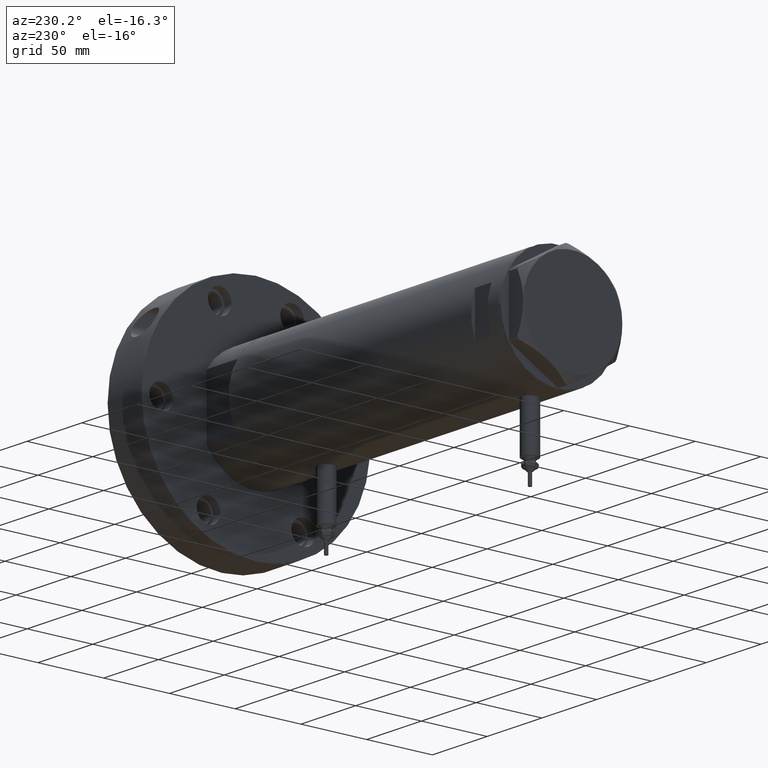
[diagram: clean part render]
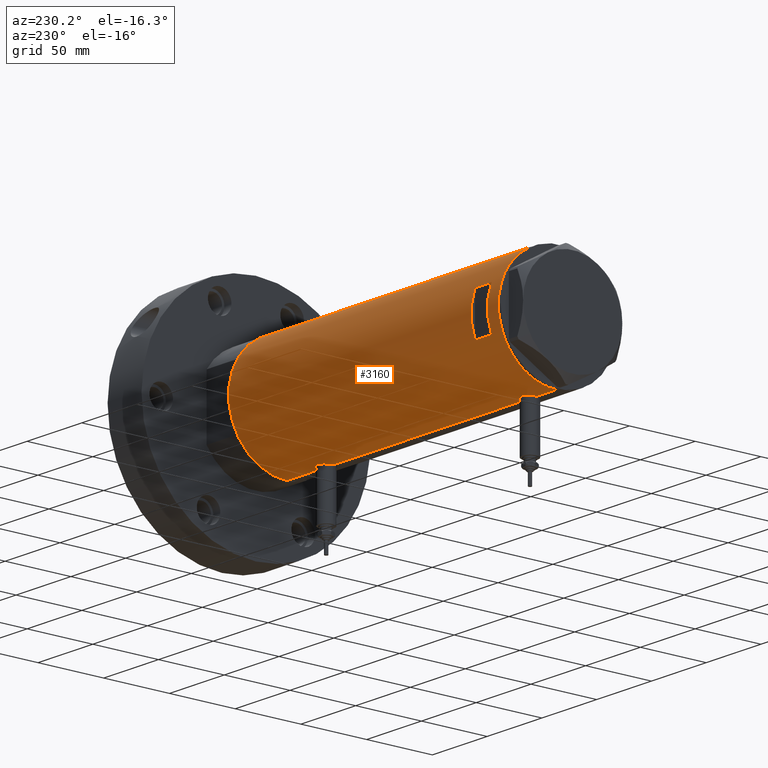
[diagram: same view with one face highlighted and labeled with its STEP entity id]
A machine part, auxiliary view. The second image highlights one B-rep face of the part: STEP entity #3160.
In plain terms, the highlighted cylindrical surface (partial cylindrical patch) has radius 44 mm, axis along (-1, -0, 0).
Its self-contained STEP definition (entity closure, byte-faithful):
#37 = CARTESIAN_POINT ( 'NONE',  ( 42.99303682946561622, 9.360292926890508625, 97.36575779792795515 ) ) ;
#45 = LINE ( 'NONE', #75, #5364 ) ;
#75 = CARTESIAN_POINT ( 'NONE',  ( -15.96871942267131672, 40.99999999999999289, -123.2000000000000028 ) ) ;
#97 = ORIENTED_EDGE ( 'NONE', *, *, #3773, .T. ) ;
#122 = CARTESIAN_POINT ( 'NONE',  ( 43.13897484505559277, 8.663345277311661263, -66.10529600060513644 ) ) ;
#161 = CARTESIAN_POINT ( 'NONE',  ( 43.92756755766649235, 2.604528169608125499, -51.42286588097656619 ) ) ;
#186 = CARTESIAN_POINT ( 'NONE',  ( -43.88968326835893663, 3.132363423941621150, 104.6237923235648140 ) ) ;
#214 = CARTESIAN_POINT ( 'NONE',  ( 43.35257020184193522, 7.523219862841655114, 107.4960255408414014 ) ) ;
#236 = CARTESIAN_POINT ( 'NONE',  ( 43.35294442506074830, 7.532526048221051873, -67.70935414491114557 ) ) ;
#298 = CARTESIAN_POINT ( 'NONE',  ( 43.27871541412904577, 7.937063204555986573, 106.9917499724603118 ) ) ;
#302 = CARTESIAN_POINT ( 'NONE',  ( -43.97754480947185129, 1.419697478855583617, 105.2900327605207167 ) ) ;
#344 = CARTESIAN_POINT ( 'NONE',  ( -43.99417607942193342, 0.8200150578638748522, -80.69063327483259229 ) ) ;
#380 = CARTESIAN_POINT ( 'NONE',  ( -43.83576802966640429, 3.813209221108459168, 94.23134509645292667 ) ) ;
#392 = CARTESIAN_POINT ( 'NONE',  ( -43.64122538274736485, 5.608286354294323317, -84.13388613036659081 ) ) ;
#433 = CARTESIAN_POINT ( 'NONE',  ( -43.88883895882798925, 3.130924084324101742, -92.31312455748147272 ) ) ;
#455 = CARTESIAN_POINT ( 'NONE',  ( -43.95549163632549750, 2.014511215452028381, 93.26941044295023175 ) ) ;
#539 = CARTESIAN_POINT ( 'NONE',  ( -43.55382423478827292, 6.250151562062086441, 98.79410470512661391 ) ) ;
#574 = CARTESIAN_POINT ( 'NONE',  ( 43.07598348983508885, 8.971306953823008357, 96.47030576812815639 ) ) ;
#588 = EDGE_CURVE ( 'NONE', #5628, #2225, #1840, .T. ) ;
#602 = B_SPLINE_CURVE_WITH_KNOTS ( 'NONE', 3,
 ( #3564, #5322, #3096, #2532, #3131, #5467, #5973, #1917, #1884, #1311, #1846, #668, #2988, #236, #6014, #4744, #122, #1351, #780, #4855, #3632, #2416, #3600, #4901, #5936, #5902, #740, #7229, #6616, #2458, #5395, #4241, #7071, #1960, #6504, #6536, #5356, #5430, #7111, #1394, #4786, #2577, #4210, #3060, #161, #4284, #2496, #4819, #2000, #4323 ),
 .UNSPECIFIED., .F., .F.,
 ( 4, 2, 2, 2, 2, 2, 2, 2, 2, 2, 2, 2, 2, 2, 2, 2, 2, 2, 2, 2, 2, 2, 2, 2, 4 ),
 ( 1.692956015708611541E-18, 0.001960456513248875435, 0.002940684769873316406, 0.003920913026497757810, 0.005881369539746623271, 0.006861597796371055567, 0.007841826052995486129, 0.009802282566244380213, 0.01078251082286882552, 0.01176273907949326736, 0.01274296733611771093, 0.01372319559274215450, 0.01568365210599102083, 0.01764410861923988716, 0.01960456513248875349, 0.02058479338911319706, 0.02156502164573764410, 0.02254524990236208420, 0.02352547815898652778, 0.02548593467223542880, 0.02646616292885988278, 0.02744639118548432982, 0.02940684769873323431, 0.03038707595535768483, 0.03136730421198213187 ),
 .UNSPECIFIED. ) ;
#643 = EDGE_CURVE ( 'NONE', #5549, #1291, #1861, .T. ) ;
#651 = CYLINDRICAL_SURFACE ( 'NONE', #2320, 44.00000000000000000 ) ;
#652 = CARTESIAN_POINT ( 'NONE',  ( 42.92624534982632412, 9.661626915142806027, 98.29991995855294817 ) ) ;
#668 = CARTESIAN_POINT ( 'NONE',  ( 43.50265731352002518, 6.601850423195598339, -68.61819167298953914 ) ) ;
#675 = VERTEX_POINT ( 'NONE', #1414 ) ;
#720 = CARTESIAN_POINT ( 'NONE',  ( 42.86396777580257833, 9.934664719553396139, 102.2157619902652073 ) ) ;
#740 = CARTESIAN_POINT ( 'NONE',  ( 42.86396777580258544, 9.934664719553399692, -59.78423800973479985 ) ) ;
#746 = EDGE_CURVE ( 'NONE', #3837, #675, #2742, .T. ) ;
#780 = CARTESIAN_POINT ( 'NONE',  ( 43.04663170950395568, 9.110642017076084898, -65.23547502190393743 ) ) ;
#840 = CARTESIAN_POINT ( 'NONE',  ( 42.92259096922160921, 9.678247830257125983, 103.5000599302879607 ) ) ;
#858 = CARTESIAN_POINT ( 'NONE',  ( -43.58221825186232223, 6.049526113783018744, -88.52262970817959342 ) ) ;
#882 = CARTESIAN_POINT ( 'NONE',  ( 43.99635668041006653, 0.6544833911834598839, 110.8840070847753481 ) ) ;
#891 = CARTESIAN_POINT ( 'NONE',  ( -43.80646232387288563, 4.132500855894024383, 103.9064558540335668 ) ) ;
#903 = CARTESIAN_POINT ( 'NONE',  ( -43.62981559643959883, 5.696090409300652802, -89.48051365414525549 ) ) ;
#923 = CARTESIAN_POINT ( 'NONE',  ( -43.61859254253774054, 5.782454868881351295, 101.5978640089446827 ) ) ;
#936 = CARTESIAN_POINT ( 'NONE',  ( -43.71938389712227035, 4.966728892888061075, -83.08385547659129600 ) ) ;
#956 = CARTESIAN_POINT ( 'NONE',  ( -43.67867890111967455, 5.309046579850785541, 95.89577220923976597 ) ) ;
#968 = CARTESIAN_POINT ( 'NONE',  ( -43.80646232387288563, 4.132500855894024383, -82.19354414596645597 ) ) ;
#994 = LINE ( 'NONE', #5039, #4277 ) ;
#1010 = CARTESIAN_POINT ( 'NONE',  ( -43.97754480947187261, 1.419697478855584283, -80.80996723947926341 ) ) ;
#1028 = DIRECTION ( 'NONE',  ( 0.000000000000000000, 0.000000000000000000, 1.000000000000000000 ) ) ;
#1036 = CARTESIAN_POINT ( 'NONE',  ( -43.59867737633045692, 5.931302618788633296, 97.18750504970115855 ) ) ;
#1070 = CARTESIAN_POINT ( 'NONE',  ( -43.71901936021023971, 4.969830049220626655, 95.38832362301124590 ) ) ;
#1112 = CARTESIAN_POINT ( 'NONE',  ( -43.58221825186232223, 6.049526113783018744, 97.57737029182041510 ) ) ;
#1118 = VECTOR ( 'NONE', #2748, 1000.000000000000000 ) ;
#1163 = CARTESIAN_POINT ( 'NONE',  ( -15.96871942267132027, 40.99999999999999289, 113.1999999999999886 ) ) ;
#1186 = CARTESIAN_POINT ( 'NONE',  ( -44.00000000000000000, 5.388445916248352830E-15, 123.2000000000000028 ) ) ;
#1265 = CARTESIAN_POINT ( 'NONE',  ( 0.000000000000000000, 0.000000000000000000, -123.2000000000000028 ) ) ;
#1291 = VERTEX_POINT ( 'NONE', #3415 ) ;
#1296 = CARTESIAN_POINT ( 'NONE',  ( 43.71454618729809027, 5.012329428678966359, 109.5593697405831080 ) ) ;
#1304 = DIRECTION ( 'NONE',  ( 0.000000000000000000, 0.000000000000000000, 1.000000000000000000 ) ) ;
#1311 = CARTESIAN_POINT ( 'NONE',  ( 43.61291203895920887, 5.829986172017924240, -69.23128710786831164 ) ) ;
#1351 = CARTESIAN_POINT ( 'NONE',  ( 43.07598348983507464, 8.971306953823004804, -65.52969423187188625 ) ) ;
#1394 = CARTESIAN_POINT ( 'NONE',  ( 43.68141895191830315, 5.292250119194744862, -52.60895047714806338 ) ) ;
#1414 = CARTESIAN_POINT ( 'NONE',  ( 44.00000000000000000, -1.742910476879209922E-15, -71.10000000000000853 ) ) ;
#1427 = CARTESIAN_POINT ( 'NONE',  ( -43.55386785759471735, 6.249847571481741859, -86.48945052382046583 ) ) ;
#1447 = CARTESIAN_POINT ( 'NONE',  ( 43.13962074468734897, 8.660138848900674091, 105.9108974116393398 ) ) ;
#1451 = EDGE_CURVE ( 'NONE', #675, #7063, #602, .T. ) ;
#1466 = CARTESIAN_POINT ( 'NONE',  ( -43.58362292239462477, 6.039157555656596621, -85.27736421551961143 ) ) ;
#1473 = CARTESIAN_POINT ( 'NONE',  ( 0.000000000000000000, 0.000000000000000000, -123.2000000000000028 ) ) ;
#1493 = EDGE_CURVE ( 'NONE', #7128, #2712, #5070, .T. ) ;
#1496 = CARTESIAN_POINT ( 'NONE',  ( -43.67863969133946966, 5.309394106110037370, 102.5037929650255251 ) ) ;
#1508 = CARTESIAN_POINT ( 'NONE',  ( -43.87596296923810968, 3.305851531861729420, -92.20803585876264208 ) ) ;
#1531 = CARTESIAN_POINT ( 'NONE',  ( -43.99999999999997158, 0.4081702738789199092, 92.94999999999997442 ) ) ;
#1542 = CARTESIAN_POINT ( 'NONE',  ( -43.59867737633045692, 5.931302618788633296, -88.91249495029892103 ) ) ;
#1577 = CARTESIAN_POINT ( 'NONE',  ( -43.88968326835894374, 3.132363423941621594, -81.47620767643522299 ) ) ;
#1602 = AXIS2_PLACEMENT_3D ( 'NONE', #4117, #2971, #4763 ) ;
#1668 = CARTESIAN_POINT ( 'NONE',  ( -15.96871942267131672, 40.99999999999999289, 98.19999999999998863 ) ) ;
#1726 = CARTESIAN_POINT ( 'NONE',  ( 43.27822890220284080, 7.945655169171510934, 94.79274616710708301 ) ) ;
#1760 = CARTESIAN_POINT ( 'NONE',  ( 43.77939001959704513, 4.442287752090380515, 91.91693822440836925 ) ) ;
#1840 = CIRCLE ( 'NONE', #3909, 44.00000000000000000 ) ;
#1846 = CARTESIAN_POINT ( 'NONE',  ( 43.57657781376908446, 6.094873943596686772, -69.03474301119597101 ) ) ;
#1861 = B_SPLINE_CURVE_WITH_KNOTS ( 'NONE', 3,
 ( #4729, #2437, #3546, #5338, #5774, #2870, #5199, #1760, #2940, #2975, #4700, #4121, #7521, #2293, #1726, #4052, #6385, #574, #5278, #37, #2370, #652, #5309, #5528, #7279, #4877, #720, #840, #6596, #6521, #1935, #1447, #3697, #6035, #298, #214, #4343, #2479, #7208, #6552, #1296, #5416, #4306, #4261, #3768, #6672, #4955, #882, #2552, #3116 ),
 .UNSPECIFIED., .F., .F.,
 ( 4, 2, 2, 2, 2, 2, 2, 2, 2, 2, 2, 2, 2, 2, 2, 2, 2, 2, 2, 2, 2, 2, 2, 2, 4 ),
 ( 2.058272752699468799E-18, 0.001960456513248896686, 0.002940684769873340258, 0.003920913026497782963, 0.005881369539746685721, 0.006861597796371134497, 0.007841826052995583274, 0.009802282566244484296, 0.01078251082286893481, 0.01176273907949338358, 0.01274296733611783236, 0.01372319559274228114, 0.01568365210599118043, 0.01764410861924008145, 0.01960456513248897553, 0.02058479338911340870, 0.02156502164573783492, 0.02254524990236226462, 0.02352547815898669778, 0.02548593467223555370, 0.02646616292885998686, 0.02744639118548441656, 0.02940684769873326901, 0.03038707595535769523, 0.03136730421198211799 ),
 .UNSPECIFIED. ) ;
#1868 = DIRECTION ( 'NONE',  ( 1.000000000000000000, 0.000000000000000000, 0.000000000000000000 ) ) ;
#1884 = CARTESIAN_POINT ( 'NONE',  ( 43.71659050864932539, 5.015880325000606987, -69.77566825963825181 ) ) ;
#1917 = CARTESIAN_POINT ( 'NONE',  ( 43.77939001959706644, 4.442287752090380515, -70.08306177559164496 ) ) ;
#1935 = CARTESIAN_POINT ( 'NONE',  ( 43.07641822757289418, 8.969229373860574839, 105.3339623579017257 ) ) ;
#1955 = ORIENTED_EDGE ( 'NONE', *, *, #5397, .F. ) ;
#1960 = CARTESIAN_POINT ( 'NONE',  ( 43.24261242176996234, 8.130827601038836505, -55.26944813145832569 ) ) ;
#1986 = CARTESIAN_POINT ( 'NONE',  ( -44.00000000000000711, 0.4135148353567996149, 105.4500000000000028 ) ) ;
#2000 = CARTESIAN_POINT ( 'NONE',  ( 44.00000000000002132, 0.3269372501759426064, -51.10000000000002274 ) ) ;
#2023 = CARTESIAN_POINT ( 'NONE',  ( -43.99417607942194763, 0.8200150578638748522, 105.4093667251674162 ) ) ;
#2032 = CARTESIAN_POINT ( 'NONE',  ( -43.80687348212602217, 4.128385987736835183, -91.61048743310965392 ) ) ;
#2067 = ORIENTED_EDGE ( 'NONE', *, *, #1451, .F. ) ;
#2069 = CARTESIAN_POINT ( 'NONE',  ( -43.97181775256598257, 1.624866278047412571, -92.94892918385093594 ) ) ;
#2112 = CARTESIAN_POINT ( 'NONE',  ( -43.94507179847653333, 2.206027755801677870, -81.04868477718204645 ) ) ;
#2118 = DIRECTION ( 'NONE',  ( 1.000000000000000000, 0.000000000000000000, 0.000000000000000000 ) ) ;
#2200 = ORIENTED_EDGE ( 'NONE', *, *, #7262, .T. ) ;
#2209 = VECTOR ( 'NONE', #6879, 1000.000000000000000 ) ;
#2225 = VERTEX_POINT ( 'NONE', #1668 ) ;
#2282 = ORIENTED_EDGE ( 'NONE', *, *, #588, .F. ) ;
#2293 = CARTESIAN_POINT ( 'NONE',  ( 43.35294442506074830, 7.532526048221051873, 94.29064585508892549 ) ) ;
#2320 = AXIS2_PLACEMENT_3D ( 'NONE', #1265, #4836, #1868 ) ;
#2329 = DIRECTION ( 'NONE',  ( 1.000000000000000000, 0.000000000000000000, 0.000000000000000000 ) ) ;
#2370 = CARTESIAN_POINT ( 'NONE',  ( 42.96879251999279603, 9.470609476412111150, 97.67277100058943518 ) ) ;
#2416 = CARTESIAN_POINT ( 'NONE',  ( 42.92624534982631701, 9.661626915142809580, -63.70008004144708735 ) ) ;
#2437 = CARTESIAN_POINT ( 'NONE',  ( 44.00000000000000711, 0.6630566900259819985, 90.90000000000001990 ) ) ;
#2458 = CARTESIAN_POINT ( 'NONE',  ( 43.04652664061919154, 9.111152824375430725, -56.96541990785409837 ) ) ;
#2479 = CARTESIAN_POINT ( 'NONE',  ( 43.50382207688845426, 6.605942769308304818, 108.4360468883821937 ) ) ;
#2496 = CARTESIAN_POINT ( 'NONE',  ( 43.98169492814103876, 1.310824514239773642, -51.18080219619317006 ) ) ;
#2520 = VERTEX_POINT ( 'NONE', #1163 ) ;
#2532 = CARTESIAN_POINT ( 'NONE',  ( 43.94229162222108442, 2.275476993733909659, -70.84314464222306640 ) ) ;
#2552 = CARTESIAN_POINT ( 'NONE',  ( 44.00000000000000000, 0.3269372501759406080, 110.8999999999999773 ) ) ;
#2562 = CARTESIAN_POINT ( 'NONE',  ( 44.00000000000000000, -3.917167710965456221E-21, -51.10000000000000853 ) ) ;
#2577 = CARTESIAN_POINT ( 'NONE',  ( 43.77712723341632994, 4.432620652875510991, -52.13004990240029457 ) ) ;
#2616 = CARTESIAN_POINT ( 'NONE',  ( -43.55973179376100290, 6.209370339246232717, -87.72061767059871329 ) ) ;
#2671 = CARTESIAN_POINT ( 'NONE',  ( -43.97068415157983878, 1.617901284326946909, 105.2404512830004535 ) ) ;
#2683 = CARTESIAN_POINT ( 'NONE',  ( -44.00000000000000711, 0.4081702738789186879, -93.15000000000003411 ) ) ;
#2712 = VERTEX_POINT ( 'NONE', #7060 ) ;
#2714 = CARTESIAN_POINT ( 'NONE',  ( -43.99413512814552263, 0.8228129877960650429, 92.99091685674176233 ) ) ;
#2721 = CARTESIAN_POINT ( 'NONE',  ( 15.96871942267132027, 40.99999999999999289, 113.1999999999999886 ) ) ;
#2742 = LINE ( 'NONE', #2776, #5750 ) ;
#2748 = DIRECTION ( 'NONE',  ( 0.000000000000000000, 0.000000000000000000, 1.000000000000000000 ) ) ;
#2762 = CARTESIAN_POINT ( 'NONE',  ( -43.97068415157985299, 1.617901284326947575, -80.85954871699956925 ) ) ;
#2776 = CARTESIAN_POINT ( 'NONE',  ( 44.00000000000000000, 0.000000000000000000, -123.2000000000000028 ) ) ;
#2868 = CARTESIAN_POINT ( 'NONE',  ( -43.92459115390705193, 2.581892149020998950, 93.50454172926654905 ) ) ;
#2870 = CARTESIAN_POINT ( 'NONE',  ( 43.88297407487991109, 3.222431612395377343, 91.42771797970658554 ) ) ;
#2899 = CARTESIAN_POINT ( 'NONE',  ( 0.000000000000000000, 0.000000000000000000, 123.2000000000000028 ) ) ;
#2940 = CARTESIAN_POINT ( 'NONE',  ( 43.71659050864931828, 5.015880325000606099, 92.22433174036179082 ) ) ;
#2962 = CARTESIAN_POINT ( 'NONE',  ( 44.00000000000000000, 0.000000000000000000, 123.2000000000000028 ) ) ;
#2971 = DIRECTION ( 'NONE',  ( -0.000000000000000000, -0.000000000000000000, -1.000000000000000000 ) ) ;
#2975 = CARTESIAN_POINT ( 'NONE',  ( 43.61291203895920887, 5.829986172017921575, 92.76871289213168836 ) ) ;
#2988 = CARTESIAN_POINT ( 'NONE',  ( 43.46520118248734121, 6.843279251446917399, -68.39898327212166862 ) ) ;
#2999 = CARTESIAN_POINT ( 'NONE',  ( -44.00000000000000000, 5.388445916248352830E-15, -123.2000000000000028 ) ) ;
#3010 = LINE ( 'NONE', #7103, #4389 ) ;
#3034 = FACE_BOUND ( 'NONE', #3304, .T. ) ;
#3060 = CARTESIAN_POINT ( 'NONE',  ( 43.88561577393361546, 3.228056721358716796, -51.61278334272175528 ) ) ;
#3081 = CARTESIAN_POINT ( 'NONE',  ( 44.00000000000000000, -2.119006702872526837E-15, 90.90000000000000568 ) ) ;
#3092 = VERTEX_POINT ( 'NONE', #6418 ) ;
#3096 = CARTESIAN_POINT ( 'NONE',  ( 43.98503110884232825, 1.314607393679875447, -71.03470984345554484 ) ) ;
#3116 = CARTESIAN_POINT ( 'NONE',  ( 44.00000000000000000, -3.917104602093038540E-21, 110.9000000000000057 ) ) ;
#3131 = CARTESIAN_POINT ( 'NONE',  ( 43.92466059386729427, 2.593004216484781743, -70.76356669671353927 ) ) ;
#3160 = ADVANCED_FACE ( 'NONE', ( #3034, #3545 ), #651, .T. ) ;
#3202 = CARTESIAN_POINT ( 'NONE',  ( -43.74833112883977293, 4.708208586952001617, 103.3305038350888339 ) ) ;
#3214 = CARTESIAN_POINT ( 'NONE',  ( -43.95446647384542871, 2.010857111636599637, -80.97875773636062036 ) ) ;
#3246 = CARTESIAN_POINT ( 'NONE',  ( -43.99413512814553684, 0.8228129877960669303, -93.10908314325824620 ) ) ;
#3272 = CARTESIAN_POINT ( 'NONE',  ( -44.00000000000000000, 5.388445781982983516E-15, 92.95000000000000284 ) ) ;
#3304 = EDGE_LOOP ( 'NONE', ( #4338, #2282, #1955, #4526 ) ) ;
#3315 = CARTESIAN_POINT ( 'NONE',  ( -43.88883895882799635, 3.130924084324101297, 93.78687544251855002 ) ) ;
#3329 = CARTESIAN_POINT ( 'NONE',  ( -43.55963022497232373, 6.210088036293395675, -86.08353836982578855 ) ) ;
#3355 = CARTESIAN_POINT ( 'NONE',  ( -43.91315028150560096, 2.769134003554746482, 93.59317380624592886 ) ) ;
#3392 = CARTESIAN_POINT ( 'NONE',  ( -43.87596296923810968, 3.305851531861728976, 93.89196414123738066 ) ) ;
#3415 = CARTESIAN_POINT ( 'NONE',  ( 44.00000000000000000, -3.917104602093038540E-21, 110.9000000000000057 ) ) ;
#3438 = CARTESIAN_POINT ( 'NONE',  ( -43.55963022497231663, 6.210088036293396563, 100.0164616301742342 ) ) ;
#3440 = CARTESIAN_POINT ( 'NONE',  ( 0.000000000000000000, 0.000000000000000000, 98.20000000000017337 ) ) ;
#3541 = VERTEX_POINT ( 'NONE', #2962 ) ;
#3545 = FACE_OUTER_BOUND ( 'NONE', #6884, .T. ) ;
#3546 = CARTESIAN_POINT ( 'NONE',  ( 43.98503110884232115, 1.314607393679875447, 90.96529015654448358 ) ) ;
#3564 = CARTESIAN_POINT ( 'NONE',  ( 44.00000000000000000, -1.742910476879209922E-15, -71.10000000000000853 ) ) ;
#3587 = DIRECTION ( 'NONE',  ( 0.000000000000000000, 1.000000000000000000, -4.731064025391292434E-15 ) ) ;
#3600 = CARTESIAN_POINT ( 'NONE',  ( 42.90786968859021044, 9.742642423712169375, -63.37802296547128122 ) ) ;
#3632 = CARTESIAN_POINT ( 'NONE',  ( 42.96879251999280314, 9.470609476412112926, -64.32722899941057904 ) ) ;
#3657 = VECTOR ( 'NONE', #6386, 1000.000000000000000 ) ;
#3697 = CARTESIAN_POINT ( 'NONE',  ( 43.17306590853067405, 8.492365194390515626, 106.1901253269346057 ) ) ;
#3745 = CARTESIAN_POINT ( 'NONE',  ( -43.74805001749255950, 4.711035428619389620, -91.02776064125801270 ) ) ;
#3768 = CARTESIAN_POINT ( 'NONE',  ( 43.92756755766649945, 2.604528169608117505, 110.5771341190234693 ) ) ;
#3773 = EDGE_CURVE ( 'NONE', #3837, #7297, #7195, .T. ) ;
#3816 = CARTESIAN_POINT ( 'NONE',  ( -43.66555354895124452, 5.415612800338318600, 102.3265635717755799 ) ) ;
#3830 = CARTESIAN_POINT ( 'NONE',  ( -43.67863969133947677, 5.309394106110037370, -83.59620703497455452 ) ) ;
#3837 = VERTEX_POINT ( 'NONE', #6321 ) ;
#3849 = CARTESIAN_POINT ( 'NONE',  ( -43.58362292239462477, 6.039157555656595733, 100.8226357844804113 ) ) ;
#3863 = CARTESIAN_POINT ( 'NONE',  ( -43.64133398152736021, 5.607447751852152606, -89.66786045012436546 ) ) ;
#3902 = CARTESIAN_POINT ( 'NONE',  ( -44.00000000000000000, 4.742402805755500961E-16, -80.65000000000000568 ) ) ;
#3909 = AXIS2_PLACEMENT_3D ( 'NONE', #3440, #6419, #3587 ) ;
#3918 = EDGE_CURVE ( 'NONE', #7297, #2712, #4586, .T. ) ;
#3934 = CARTESIAN_POINT ( 'NONE',  ( -43.55973179376100290, 6.209370339246232717, 98.37938232940129524 ) ) ;
#3957 = EDGE_CURVE ( 'NONE', #7063, #5549, #5076, .T. ) ;
#3973 = CARTESIAN_POINT ( 'NONE',  ( -44.00000000000000000, 5.388445916248352830E-15, -123.2000000000000028 ) ) ;
#4052 = CARTESIAN_POINT ( 'NONE',  ( 43.17277162440353777, 8.493905080221257009, 95.61212964891504384 ) ) ;
#4086 = CARTESIAN_POINT ( 'NONE',  ( -44.00000000000000000, 5.388445916248352830E-15, -123.2000000000000028 ) ) ;
#4106 = EDGE_CURVE ( 'NONE', #2520, #6728, #5500, .T. ) ;
#4117 = CARTESIAN_POINT ( 'NONE',  ( 0.000000000000000000, 0.000000000000000000, 113.1999999999999886 ) ) ;
#4121 = CARTESIAN_POINT ( 'NONE',  ( 43.50265731352003939, 6.601850423195591233, 93.38180832701050349 ) ) ;
#4157 = ORIENTED_EDGE ( 'NONE', *, *, #4182, .F. ) ;
#4182 = EDGE_CURVE ( 'NONE', #3541, #7181, #6111, .T. ) ;
#4210 = CARTESIAN_POINT ( 'NONE',  ( 43.80640706382534688, 4.134078575915398623, -51.98867178437912884 ) ) ;
#4241 = CARTESIAN_POINT ( 'NONE',  ( 43.13962074468733476, 8.660138848900679420, -56.08910258836065310 ) ) ;
#4261 = CARTESIAN_POINT ( 'NONE',  ( 43.88561577393360125, 3.228056721358715020, 110.3872166572782589 ) ) ;
#4277 = VECTOR ( 'NONE', #5157, 1000.000000000000000 ) ;
#4284 = CARTESIAN_POINT ( 'NONE',  ( 43.97062489912107708, 1.639461988184805596, -51.22985373334016401 ) ) ;
#4306 = CARTESIAN_POINT ( 'NONE',  ( 43.80640706382535399, 4.134078575915391518, 110.0113282156209067 ) ) ;
#4323 = CARTESIAN_POINT ( 'NONE',  ( 44.00000000000000000, -3.917167710965456221E-21, -51.10000000000000853 ) ) ;
#4338 = ORIENTED_EDGE ( 'NONE', *, *, #4971, .F. ) ;
#4343 = CARTESIAN_POINT ( 'NONE',  ( 43.39051256276904667, 7.301963662770313945, 107.7402446821294433 ) ) ;
#4353 = ORIENTED_EDGE ( 'NONE', *, *, #3918, .T. ) ;
#4389 = VECTOR ( 'NONE', #1304, 1000.000000000000000 ) ;
#4398 = CARTESIAN_POINT ( 'NONE',  ( -44.00000000000000000, 0.4135148353567997814, -80.65000000000000568 ) ) ;
#4441 = CARTESIAN_POINT ( 'NONE',  ( -43.83576802966639718, 3.813209221108460945, -91.86865490354712449 ) ) ;
#4526 = ORIENTED_EDGE ( 'NONE', *, *, #4106, .F. ) ;
#4529 = B_SPLINE_CURVE_WITH_KNOTS ( 'NONE', 3,
 ( #7215, #1986, #2023, #302, #2671, #6117, #4960, #6002, #186, #4844, #891, #3202, #5534, #1496, #3816, #7173, #923, #6602, #3849, #6187, #3438, #6268, #539, #3934, #1112, #1036, #5772, #7519, #5113, #956, #1070, #6831, #6880, #380, #3392, #3315, #3355, #2868, #455, #4587, #2714, #1531, #3272 ),
 .UNSPECIFIED., .F., .F.,
 ( 4, 2, 2, 2, 2, 2, 2, 2, 1, 2, 2, 2, 2, 2, 2, 2, 2, 2, 2, 2, 2, 4 ),
 ( 4.805521771237896388E-19, 0.001222818171749670340, 0.001834227257624505619, 0.002445636343499341114, 0.003668454515249027284, 0.004891272686998713454, 0.006114090858748398756, 0.006725499944623259188, 0.007336909030498119620, 0.007948318116372978318, 0.008559727202247837882, 0.009782545373997518848, 0.01100536354574719981, 0.01222818171749687904, 0.01283959080337173861, 0.01345099988924659644, 0.01467381806099631383, 0.01589663623274603296, 0.01650804531862088906, 0.01711945440449574862, 0.01834227257624546428, 0.01956509074799517994 ),
 .UNSPECIFIED. ) ;
#4586 = LINE ( 'NONE', #3973, #1118 ) ;
#4587 = CARTESIAN_POINT ( 'NONE',  ( -43.97181775256600389, 1.624866278047415236, 93.15107081614905837 ) ) ;
#4665 = DIRECTION ( 'NONE',  ( 0.000000000000000000, 0.000000000000000000, 1.000000000000000000 ) ) ;
#4700 = CARTESIAN_POINT ( 'NONE',  ( 43.57657781376908446, 6.094873943596679666, 92.96525698880402899 ) ) ;
#4729 = CARTESIAN_POINT ( 'NONE',  ( 44.00000000000000000, -2.119006702872526837E-15, 90.90000000000000568 ) ) ;
#4736 = DIRECTION ( 'NONE',  ( 0.000000000000000000, 0.000000000000000000, 1.000000000000000000 ) ) ;
#4744 = CARTESIAN_POINT ( 'NONE',  ( 43.17277162440353777, 8.493905080221258785, -66.38787035108495616 ) ) ;
#4763 = DIRECTION ( 'NONE',  ( 1.000000000000000000, -8.881784197001252323E-16, 0.000000000000000000 ) ) ;
#4786 = CARTESIAN_POINT ( 'NONE',  ( 43.71454618729809738, 5.012329428678971688, -52.44063025941691336 ) ) ;
#4819 = CARTESIAN_POINT ( 'NONE',  ( 43.99635668041007364, 0.6544833911834621043, -51.11599291522471589 ) ) ;
#4836 = DIRECTION ( 'NONE',  ( 0.000000000000000000, 0.000000000000000000, 1.000000000000000000 ) ) ;
#4844 = CARTESIAN_POINT ( 'NONE',  ( -43.83593455218809254, 3.811409182021277431, 104.1701492770349944 ) ) ;
#4855 = CARTESIAN_POINT ( 'NONE',  ( 42.99303682946562333, 9.360292926890508625, -64.63424220207204485 ) ) ;
#4877 = CARTESIAN_POINT ( 'NONE',  ( 42.84850876528982155, 10.00026482975807696, 101.5505830547042336 ) ) ;
#4901 = CARTESIAN_POINT ( 'NONE',  ( 42.86370458161098895, 9.935807968041570959, -62.40904550429867470 ) ) ;
#4955 = CARTESIAN_POINT ( 'NONE',  ( 43.98169492814102455, 1.310824514239772753, 110.8191978038068441 ) ) ;
#4960 = CARTESIAN_POINT ( 'NONE',  ( -43.94507179847653333, 2.206027755801677870, 105.0513152228179337 ) ) ;
#4971 = EDGE_CURVE ( 'NONE', #2225, #2520, #45, .T. ) ;
#4981 = EDGE_CURVE ( 'NONE', #1291, #3541, #3010, .T. ) ;
#5016 = CARTESIAN_POINT ( 'NONE',  ( -43.95549163632550460, 2.014511215452025716, -92.83058955704979098 ) ) ;
#5039 = CARTESIAN_POINT ( 'NONE',  ( -44.00000000000000000, 5.388445916248352830E-15, -123.2000000000000028 ) ) ;
#5040 = ORIENTED_EDGE ( 'NONE', *, *, #1493, .F. ) ;
#5055 = CARTESIAN_POINT ( 'NONE',  ( -43.66555354895123742, 5.415612800338316823, -83.77343642822442860 ) ) ;
#5067 = ORIENTED_EDGE ( 'NONE', *, *, #643, .F. ) ;
#5070 = B_SPLINE_CURVE_WITH_KNOTS ( 'NONE', 3,
 ( #3902, #4398, #344, #1010, #2762, #3214, #2112, #6128, #1577, #5580, #968, #5547, #936, #3830, #5055, #392, #6241, #6806, #1466, #7292, #3329, #1427, #7261, #2616, #858, #1542, #903, #3863, #6198, #6735, #7377, #3745, #2032, #4441, #1508, #433, #5092, #6164, #5016, #2069, #3246, #2683, #7339 ),
 .UNSPECIFIED., .F., .F.,
 ( 4, 2, 2, 2, 2, 2, 2, 2, 1, 2, 2, 2, 2, 2, 2, 2, 2, 2, 2, 2, 2, 4 ),
 ( 4.607841239822568942E-19, 0.001222818171749670123, 0.001834227257624505185, 0.002445636343499340247, 0.003668454515249025983, 0.004891272686998712586, 0.006114090858748397889, 0.006725499944623258321, 0.007336909030498117018, 0.007948318116372976583, 0.008559727202247836148, 0.009782545373997515378, 0.01100536354574719808, 0.01222818171749687731, 0.01283959080337173687, 0.01345099988924659470, 0.01467381806099630863, 0.01589663623274602602, 0.01650804531862088559, 0.01711945440449574515, 0.01834227257624546081, 0.01956509074799517994 ),
 .UNSPECIFIED. ) ;
#5076 = LINE ( 'NONE', #7395, #2209 ) ;
#5092 = CARTESIAN_POINT ( 'NONE',  ( -43.91315028150560096, 2.769134003554747814, -92.50682619375403704 ) ) ;
#5113 = CARTESIAN_POINT ( 'NONE',  ( -43.66575107734168171, 5.414026674167576658, 96.07064911962304166 ) ) ;
#5156 = VECTOR ( 'NONE', #4665, 1000.000000000000000 ) ;
#5157 = DIRECTION ( 'NONE',  ( 0.000000000000000000, 0.000000000000000000, 1.000000000000000000 ) ) ;
#5191 = ORIENTED_EDGE ( 'NONE', *, *, #7074, .F. ) ;
#5199 = CARTESIAN_POINT ( 'NONE',  ( 43.85884410404901246, 3.534688330930384037, 91.53980191249665666 ) ) ;
#5202 = CARTESIAN_POINT ( 'NONE',  ( 15.96871942267131672, 40.99999999999999289, -123.2000000000000028 ) ) ;
#5278 = CARTESIAN_POINT ( 'NONE',  ( 43.04663170950397699, 9.110642017076083121, 96.76452497809609099 ) ) ;
#5306 = LINE ( 'NONE', #4086, #5156 ) ;
#5309 = CARTESIAN_POINT ( 'NONE',  ( 42.90786968859020334, 9.742642423712167599, 98.62197703452872588 ) ) ;
#5322 = CARTESIAN_POINT ( 'NONE',  ( 44.00000000000001421, 0.6630566900259821095, -71.10000000000000853 ) ) ;
#5338 = CARTESIAN_POINT ( 'NONE',  ( 43.94229162222109863, 2.275476993733910103, 91.15685535777693360 ) ) ;
#5356 = CARTESIAN_POINT ( 'NONE',  ( 43.39051256276902535, 7.301963662770319274, -54.25975531787057804 ) ) ;
#5364 = VECTOR ( 'NONE', #4736, 1000.000000000000000 ) ;
#5389 = ORIENTED_EDGE ( 'NONE', *, *, #4981, .F. ) ;
#5395 = CARTESIAN_POINT ( 'NONE',  ( 43.07641822757288708, 8.969229373860574839, -56.66603764209828853 ) ) ;
#5397 = EDGE_CURVE ( 'NONE', #6728, #5628, #5953, .T. ) ;
#5416 = CARTESIAN_POINT ( 'NONE',  ( 43.77712723341633705, 4.432620652875505662, 109.8699500975997694 ) ) ;
#5430 = CARTESIAN_POINT ( 'NONE',  ( 43.50382207688845426, 6.605942769308313700, -53.56395311161780626 ) ) ;
#5467 = CARTESIAN_POINT ( 'NONE',  ( 43.88297407487988977, 3.222431612395376899, -70.57228202029341446 ) ) ;
#5500 = CIRCLE ( 'NONE', #1602, 44.00000000000000000 ) ;
#5528 = CARTESIAN_POINT ( 'NONE',  ( 42.86370458161097474, 9.935807968041567406, 99.59095449570135372 ) ) ;
#5534 = CARTESIAN_POINT ( 'NONE',  ( -43.71938389712227746, 4.966728892888062852, 103.0161445234087125 ) ) ;
#5547 = CARTESIAN_POINT ( 'NONE',  ( -43.74833112883975872, 4.708208586951999841, -82.76949616491121731 ) ) ;
#5549 = VERTEX_POINT ( 'NONE', #3081 ) ;
#5580 = CARTESIAN_POINT ( 'NONE',  ( -43.83593455218809964, 3.811409182021277431, -81.92985072296499993 ) ) ;
#5587 = DIRECTION ( 'NONE',  ( 0.000000000000000000, 0.000000000000000000, 1.000000000000000000 ) ) ;
#5628 = VERTEX_POINT ( 'NONE', #6785 ) ;
#5675 = VERTEX_POINT ( 'NONE', #5721 ) ;
#5721 = CARTESIAN_POINT ( 'NONE',  ( -44.00000000000000000, 5.388445781982983516E-15, 92.95000000000000284 ) ) ;
#5749 = AXIS2_PLACEMENT_3D ( 'NONE', #2899, #7551, #2329 ) ;
#5750 = VECTOR ( 'NONE', #1028, 1000.000000000000000 ) ;
#5772 = CARTESIAN_POINT ( 'NONE',  ( -43.62981559643959883, 5.696090409300652802, 96.61948634585476725 ) ) ;
#5774 = CARTESIAN_POINT ( 'NONE',  ( 43.92466059386729427, 2.593004216484782187, 91.23643330328644652 ) ) ;
#5829 = ORIENTED_EDGE ( 'NONE', *, *, #3957, .F. ) ;
#5902 = CARTESIAN_POINT ( 'NONE',  ( 42.84850876528982866, 10.00026482975808406, -60.44941694529579479 ) ) ;
#5927 = EDGE_CURVE ( 'NONE', #7128, #5675, #994, .T. ) ;
#5936 = CARTESIAN_POINT ( 'NONE',  ( 42.84863276153905787, 9.999733523508368194, -61.75869904750779682 ) ) ;
#5953 = LINE ( 'NONE', #5202, #3657 ) ;
#5973 = CARTESIAN_POINT ( 'NONE',  ( 43.85884410404901246, 3.534688330930384037, -70.46019808750338598 ) ) ;
#6002 = CARTESIAN_POINT ( 'NONE',  ( -43.91413175532567692, 2.773555030353453965, 104.8158423836674586 ) ) ;
#6014 = CARTESIAN_POINT ( 'NONE',  ( 43.27822890220282659, 7.945655169171512711, -67.20725383289290278 ) ) ;
#6035 = CARTESIAN_POINT ( 'NONE',  ( 43.24261242176994813, 8.130827601038829400, 106.7305518685417383 ) ) ;
#6098 = AXIS2_PLACEMENT_3D ( 'NONE', #1473, #5587, #2118 ) ;
#6111 = CIRCLE ( 'NONE', #5749, 44.00000000000000000 ) ;
#6117 = CARTESIAN_POINT ( 'NONE',  ( -43.95446647384543581, 2.010857111636599637, 105.1212422636393882 ) ) ;
#6128 = CARTESIAN_POINT ( 'NONE',  ( -43.91413175532568403, 2.773555030353453521, -81.28415761633259251 ) ) ;
#6164 = CARTESIAN_POINT ( 'NONE',  ( -43.92459115390706614, 2.581892149020998950, -92.59545827073348789 ) ) ;
#6187 = CARTESIAN_POINT ( 'NONE',  ( -43.57657963456318839, 6.089610171536606664, 100.6217853958081179 ) ) ;
#6198 = CARTESIAN_POINT ( 'NONE',  ( -43.66575107734169592, 5.414026674167576658, -90.02935088037700950 ) ) ;
#6241 = CARTESIAN_POINT ( 'NONE',  ( -43.61859254253773344, 5.782454868881350407, -84.50213599105535422 ) ) ;
#6268 = CARTESIAN_POINT ( 'NONE',  ( -43.55386785759471024, 6.249847571481740971, 99.61054947617954269 ) ) ;
#6321 = CARTESIAN_POINT ( 'NONE',  ( 44.00000000000000000, 0.000000000000000000, -123.2000000000000028 ) ) ;
#6385 = CARTESIAN_POINT ( 'NONE',  ( 43.13897484505559987, 8.663345277311661263, 95.89470399939484935 ) ) ;
#6386 = DIRECTION ( 'NONE',  ( -0.000000000000000000, -0.000000000000000000, -1.000000000000000000 ) ) ;
#6418 = CARTESIAN_POINT ( 'NONE',  ( -44.00000000000000000, 4.945856149313706956E-16, 105.4500000000000171 ) ) ;
#6419 = DIRECTION ( 'NONE',  ( 0.000000000000000000, 4.625929269271481378E-15, 1.000000000000000000 ) ) ;
#6504 = CARTESIAN_POINT ( 'NONE',  ( 43.27871541412903866, 7.937063204555983020, -55.00825002753968107 ) ) ;
#6521 = CARTESIAN_POINT ( 'NONE',  ( 43.04652664061921286, 9.111152824375427173, 105.0345800921459016 ) ) ;
#6536 = CARTESIAN_POINT ( 'NONE',  ( 43.35257020184192100, 7.523219862841648009, -54.50397445915861994 ) ) ;
#6552 = CARTESIAN_POINT ( 'NONE',  ( 43.68141895191831736, 5.292250119194733315, 109.3910495228519437 ) ) ;
#6596 = CARTESIAN_POINT ( 'NONE',  ( 42.96547725528407824, 9.488625330801083280, 104.1245034721107459 ) ) ;
#6602 = CARTESIAN_POINT ( 'NONE',  ( -43.59995593514495482, 5.920088975424566691, 101.2141790869178237 ) ) ;
#6616 = CARTESIAN_POINT ( 'NONE',  ( 42.96547725528407824, 9.488625330801090385, -57.87549652788928967 ) ) ;
#6621 = ORIENTED_EDGE ( 'NONE', *, *, #5927, .T. ) ;
#6672 = CARTESIAN_POINT ( 'NONE',  ( 43.97062489912105576, 1.639461988184796049, 110.7701462666598360 ) ) ;
#6728 = VERTEX_POINT ( 'NONE', #2721 ) ;
#6735 = CARTESIAN_POINT ( 'NONE',  ( -43.67867890111967455, 5.309046579850785541, -90.20422779076022834 ) ) ;
#6785 = CARTESIAN_POINT ( 'NONE',  ( 15.96871942267132027, 40.99999999999999289, 98.19999999999998863 ) ) ;
#6806 = CARTESIAN_POINT ( 'NONE',  ( -43.59995593514495482, 5.920088975424567579, -84.88582091308219901 ) ) ;
#6831 = CARTESIAN_POINT ( 'NONE',  ( -43.74805001749254529, 4.711035428619386956, 95.07223935874202425 ) ) ;
#6879 = DIRECTION ( 'NONE',  ( 0.000000000000000000, 0.000000000000000000, 1.000000000000000000 ) ) ;
#6880 = CARTESIAN_POINT ( 'NONE',  ( -43.80687348212602217, 4.128385987736833407, 94.48951256689039724 ) ) ;
#6884 = EDGE_LOOP ( 'NONE', ( #97, #4353, #5040, #6621, #5191, #2200, #4157, #5389, #5067, #5829, #2067, #6983 ) ) ;
#6983 = ORIENTED_EDGE ( 'NONE', *, *, #746, .F. ) ;
#7060 = CARTESIAN_POINT ( 'NONE',  ( -44.00000000000000000, 5.388445781982983516E-15, -93.15000000000000568 ) ) ;
#7063 = VERTEX_POINT ( 'NONE', #2562 ) ;
#7071 = CARTESIAN_POINT ( 'NONE',  ( 43.17306590853065273, 8.492365194390519179, -55.80987467306544403 ) ) ;
#7074 = EDGE_CURVE ( 'NONE', #3092, #5675, #4529, .T. ) ;
#7103 = CARTESIAN_POINT ( 'NONE',  ( 44.00000000000000000, 0.000000000000000000, -123.2000000000000028 ) ) ;
#7111 = CARTESIAN_POINT ( 'NONE',  ( 43.57805684119164624, 6.103282219787176111, -53.15183798352141764 ) ) ;
#7128 = VERTEX_POINT ( 'NONE', #7396 ) ;
#7173 = CARTESIAN_POINT ( 'NONE',  ( -43.64122538274737195, 5.608286354294323317, 101.9661138696334177 ) ) ;
#7181 = VERTEX_POINT ( 'NONE', #1186 ) ;
#7195 = CIRCLE ( 'NONE', #6098, 44.00000000000000000 ) ;
#7208 = CARTESIAN_POINT ( 'NONE',  ( 43.57805684119163203, 6.103282219787162788, 108.8481620164785824 ) ) ;
#7215 = CARTESIAN_POINT ( 'NONE',  ( -44.00000000000000000, 4.945856149313706956E-16, 105.4500000000000171 ) ) ;
#7229 = CARTESIAN_POINT ( 'NONE',  ( 42.92259096922160211, 9.678247830257134865, -58.49994006971208904 ) ) ;
#7261 = CARTESIAN_POINT ( 'NONE',  ( -43.55382423478828713, 6.250151562062088217, -87.30589529487342304 ) ) ;
#7262 = EDGE_CURVE ( 'NONE', #3092, #7181, #5306, .T. ) ;
#7279 = CARTESIAN_POINT ( 'NONE',  ( 42.84863276153906497, 9.999733523508362865, 100.2413009524922529 ) ) ;
#7292 = CARTESIAN_POINT ( 'NONE',  ( -43.57657963456318839, 6.089610171536606664, -85.47821460419190487 ) ) ;
#7297 = VERTEX_POINT ( 'NONE', #2999 ) ;
#7339 = CARTESIAN_POINT ( 'NONE',  ( -44.00000000000000000, 5.388445781982983516E-15, -93.15000000000000568 ) ) ;
#7377 = CARTESIAN_POINT ( 'NONE',  ( -43.71901936021023971, 4.969830049220627544, -90.71167637698874842 ) ) ;
#7395 = CARTESIAN_POINT ( 'NONE',  ( 44.00000000000000000, 0.000000000000000000, -123.2000000000000028 ) ) ;
#7396 = CARTESIAN_POINT ( 'NONE',  ( -44.00000000000000000, 4.742402805755500961E-16, -80.65000000000000568 ) ) ;
#7519 = CARTESIAN_POINT ( 'NONE',  ( -43.64133398152736021, 5.607447751852152606, 96.43213954987568570 ) ) ;
#7521 = CARTESIAN_POINT ( 'NONE',  ( 43.46520118248734832, 6.843279251446915623, 93.60101672787834559 ) ) ;
#7551 = DIRECTION ( 'NONE',  ( 0.000000000000000000, 0.000000000000000000, 1.000000000000000000 ) ) ;